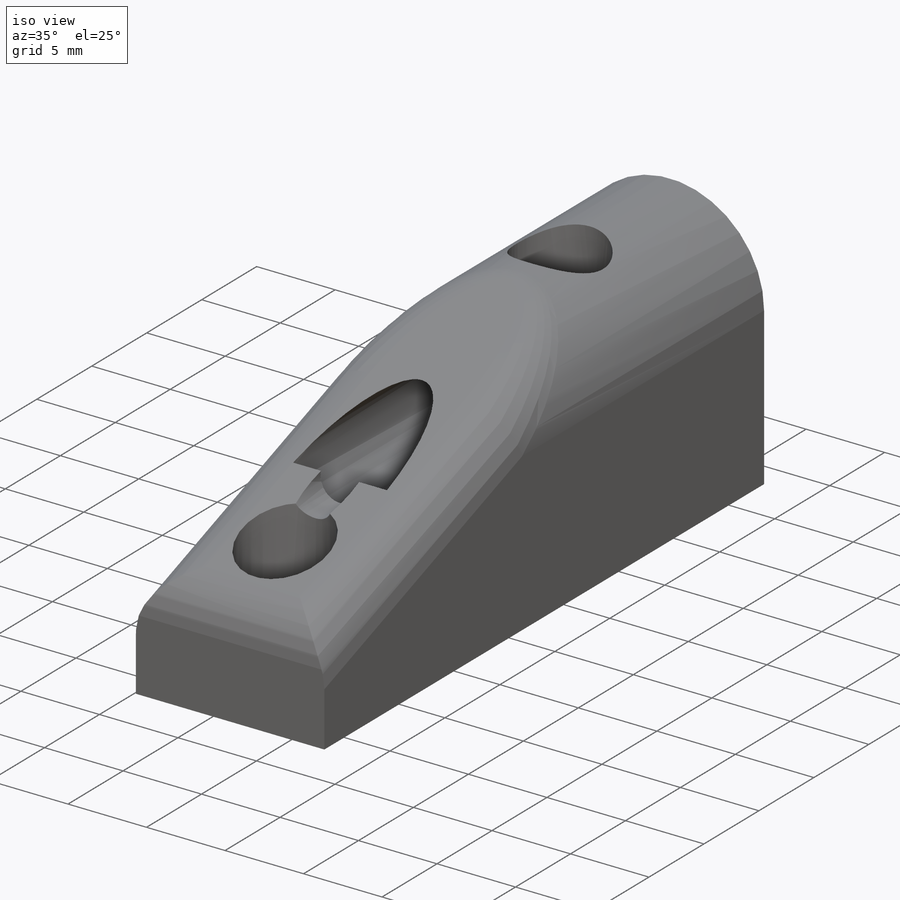
[diagram: iso view]
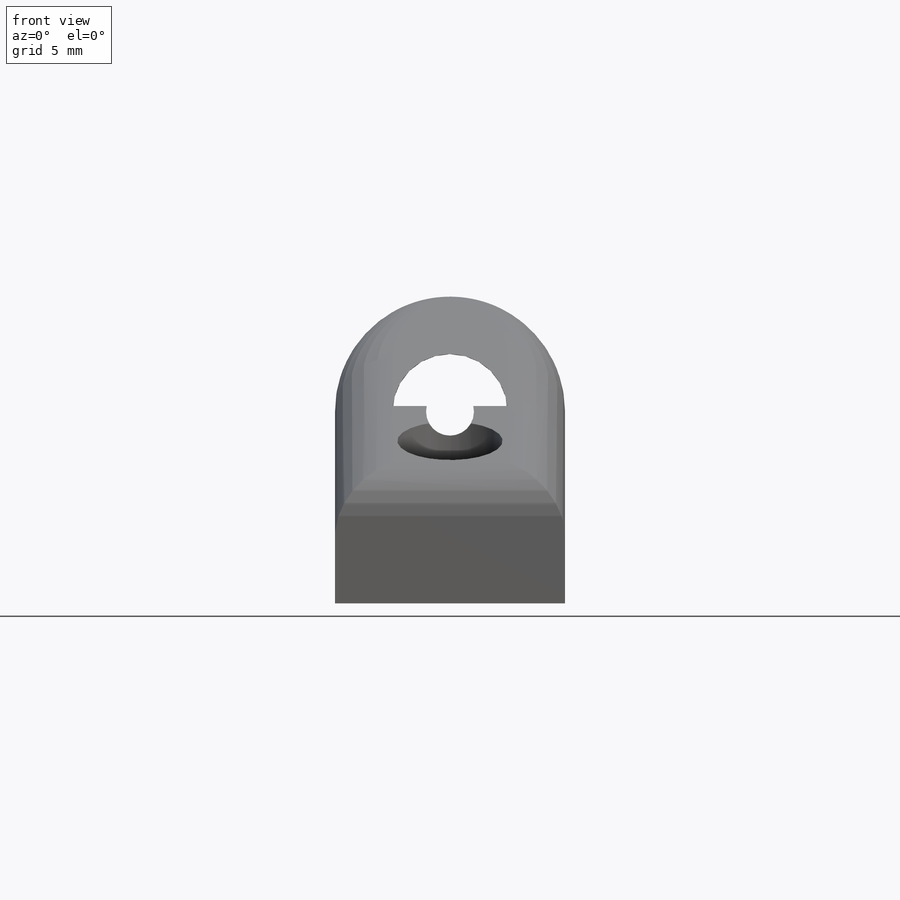
[diagram: front view]
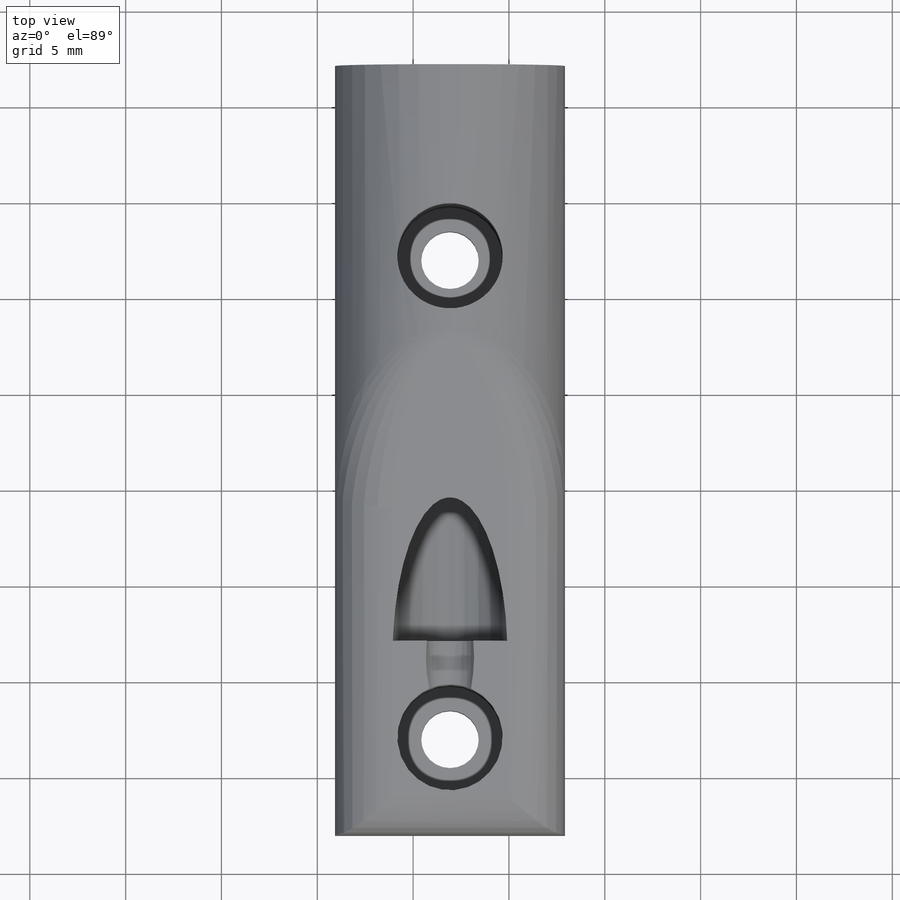
[diagram: top view]
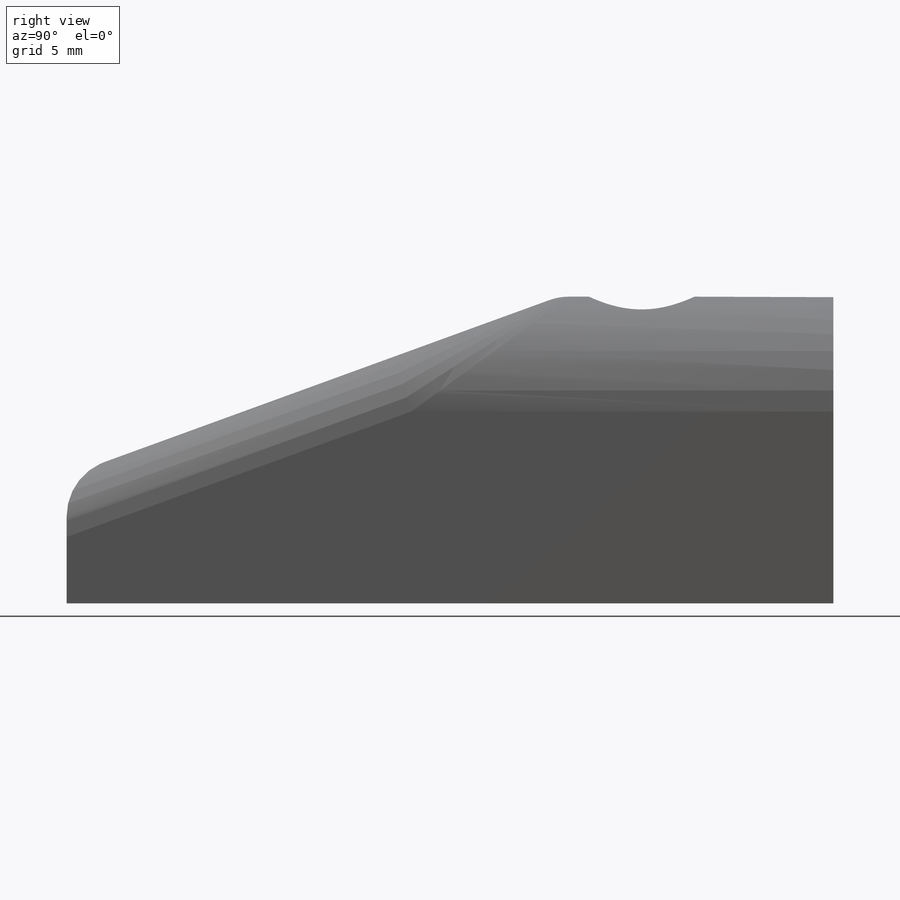
[diagram: right view]
SOLIDWORKS PART (.sldprt)
format: sldprt  version: not decoded by parser v0  size: 517,120 bytes
history: native  units: mm
features: sketch x15, cut_extrude x8, plane x4, extrude x3, material x1, hole x1, pattern_linear x1, chamfer x1, fillet x1 (+9 scaffold rows collapsed)
feature tree (44):
  scaffold x9  (default folders/planes/origin — collapsed)
  material  "Material <not specified>"
  plane  "Ebene vorne"
  plane  "Ebene oben"
  plane  "Ebene rechts"
  sketch  "Skizze1"  dims[D1=12.0mm D2=40.0mm]
  extrude  "Aufsatz-Linear austragen1"  Depth=63mm
  sketch  "Skizze2"  dims[c1.D1=4.2mm c1.D2=20.2mm c1.D3=~2.969848mm c2.D3=90.0deg c3.D3=4.2mm c4.D3=135.0deg c4.D4=~2.969848mm c5.D4=135.0deg c6.D4=9.9mm c6.D5=2.0mm]
  cut_extrude  "Schnitt-Linear austragen2"  [1 undecoded]
  plane  "Ebene1"
  hole  "Stirnsenkung für M3"  Diameter=4.5mm Depth=40mm
  sketch  "Skizze12"  dims[D1=12.0mm D2=5.0mm]
  sketch  "Skizze11"  dims[hole-wizard template sketch: 41 standard entries collapsed; hole parameters kept: c12.Bohrerdurchmesser=4.5mm c12.Bohrungstiefe=40.0mm c12.Senkdurchmesser2=8.0mm c12.Senktiefe2=4.4mm]
  sketch  "Skizze13"  dims[c1.D1=7.0mm c1.D2=6.5mm c2.D2=0.0deg]
  cut_extrude  "Schnitt-Linear austragen3"  Depth=3.2mm
  pattern_linear  "Lineares Muster2"  Count1=2 Count2=1 Spacing1=39mm Spacing2=10mm
  sketch  "Skizze14"  dims[c1.D1=43.0mm c1.D2=30.0mm c1.D3=3.3mm c2.D1=55.0mm]
  sketch  "Skizze15"  dims[D1=4.0mm D2=2.5mm]
  chamfer  "Fase1"  Distance=0.5mm Angle=45deg
  sketch  "Sketch1"  dims[D1=0.0mm D2=12.0mm D3=40.0mm D4=15.0mm]
  extrude  "Boss-Extrude1"  Depth=10mm
  sketch  "Sketch2"
  extrude  "Boss-Extrude2"  Depth=40mm
  sketch  "Sketch5"  dims[c1.D3=6.0mm c1.D1=0.0mm c1.D2=~5.787699mm c2.D2=6.0mm]
  cut_extrude  "Cut-Extrude1"  Depth=40mm
  sketch  "Sketch6"  dims[D2=2.5mm D1=6.0mm]
  cut_extrude  "Cut-Extrude2"  [1 undecoded]
  sketch  "Sketch8"  dims[c1.D1=~14.38596mm c2.D1=70.0deg c2.D2=~11.905992mm]
  cut_extrude  "Cut-Extrude3"  [1 undecoded]
  fillet  "Fillet1"  Radius=3mm
  sketch  "Sketch9"  dims[D1=~10.191914mm D2=5.0mm D3=6.0mm D5=10.0mm D4=2.0]
  cut_extrude  "Cut-Extrude4"  [1 undecoded]
  sketch  "Sketch12"  dims[c1.D1=5.5mm c1.D3=3.0mm c2.D1=~10.191914mm c2.D2=5.0mm c2.D3=6.0mm c2.D5=10.0mm c3.D2=5.0mm c3.D4=2.0]
  cut_extrude  "Cut-Extrude5"  Depth=30mm
  sketch  "Sketch14"  dims[D1=0.0mm]
  cut_extrude  "Cut-Extrude6"  [1 undecoded]
decode coverage: 24 of 30 modeling features carry decoded parameters
note: ~ marks probable driven/reference dimensions
note: 5 parameter values undecoded
summary: no parameter record found for 5 features
note: suppression state not decoded; provenance and decode notes live in map.json
